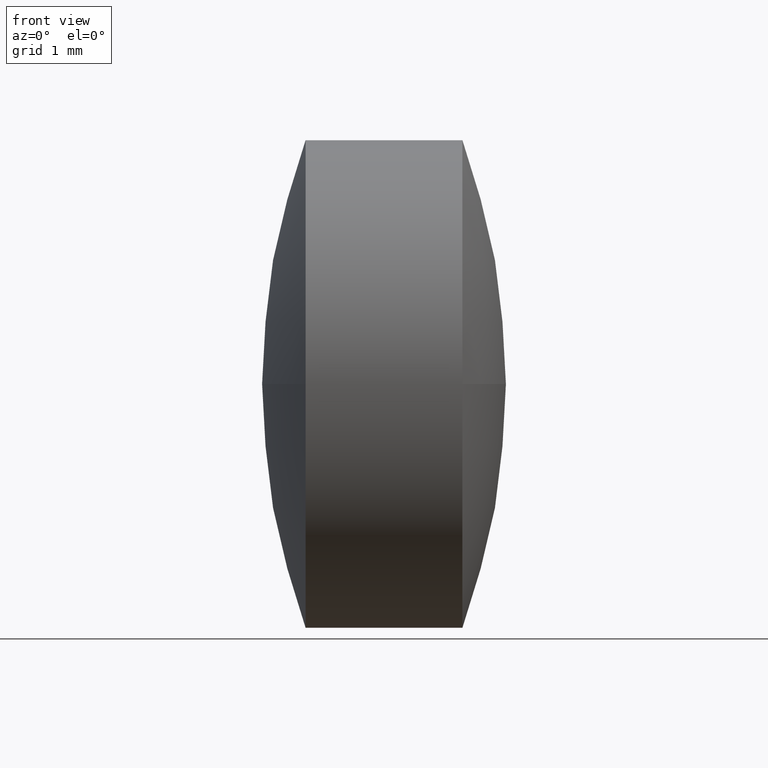
[diagram: clean part render]
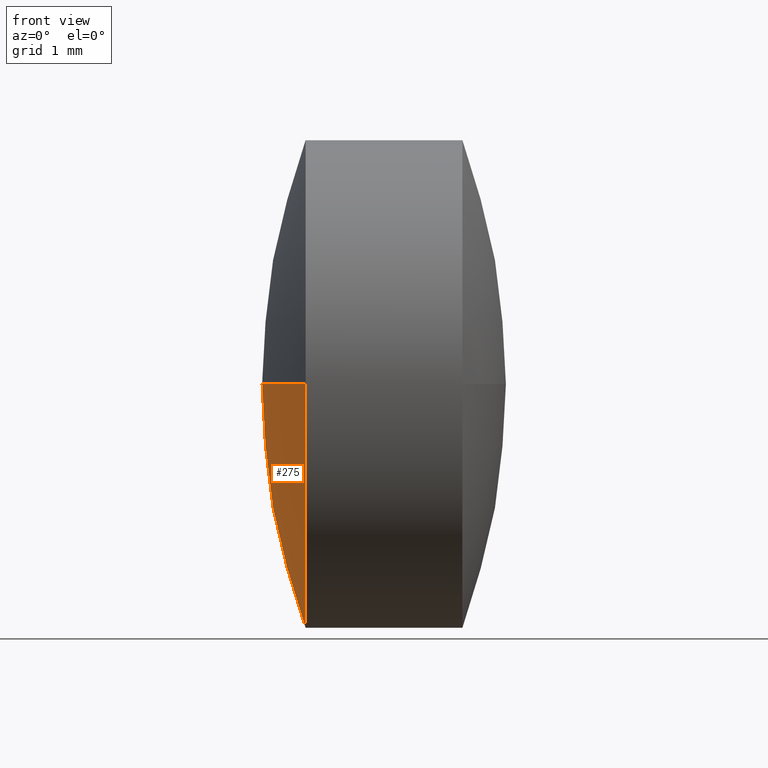
[diagram: same view with one face highlighted and labeled with its STEP entity id]
A machine part, front view. The second image highlights one B-rep face of the part: STEP entity #275.
In plain terms, the highlighted spherical surface has radius 8.6788 mm.
Its self-contained STEP definition (entity closure, byte-faithful):
#2 = VERTEX_POINT ( 'NONE', #328 ) ;
#13 = EDGE_CURVE ( 'NONE', #79, #2, #341, .T. ) ;
#29 = ORIENTED_EDGE ( 'NONE', *, *, #13, .T. ) ;
#33 = EDGE_CURVE ( 'NONE', #98, #79, #335, .T. ) ;
#35 = ORIENTED_EDGE ( 'NONE', *, *, #338, .F. ) ;
#51 = AXIS2_PLACEMENT_3D ( 'NONE', #192, #244, #245 ) ;
#79 = VERTEX_POINT ( 'NONE', #145 ) ;
#84 = CARTESIAN_POINT ( 'NONE',  ( 27.60200588776993100, 11.48412118657908100, 0.0000000000000000000 ) ) ;
#87 = DIRECTION ( 'NONE',  ( -1.000000000000000000, -0.0000000000000000000, -0.0000000000000000000 ) ) ;
#95 = CIRCLE ( 'NONE', #258, 8.678801936499811000 ) ;
#98 = VERTEX_POINT ( 'NONE', #263 ) ;
#103 = CARTESIAN_POINT ( 'NONE',  ( 19.45819823698440500, 11.48412118657908500, 0.0000000000000000000 ) ) ;
#111 = DIRECTION ( 'NONE',  ( -0.0000000000000000000, 0.0000000000000000000, -1.000000000000000000 ) ) ;
#112 = DIRECTION ( 'NONE',  ( 0.0000000000000000000, 1.000000000000000000, 0.0000000000000000000 ) ) ;
#115 = DIRECTION ( 'NONE',  ( -0.0000000000000000000, 0.0000000000000000000, 1.000000000000000000 ) ) ;
#133 = DIRECTION ( 'NONE',  ( 0.0000000000000000000, 0.0000000000000000000, 1.000000000000000000 ) ) ;
#145 = CARTESIAN_POINT ( 'NONE',  ( 19.45819823698440500, 11.48412118657908500, -2.999999999999997300 ) ) ;
#148 = AXIS2_PLACEMENT_3D ( 'NONE', #84, #111, #112 ) ;
#154 = DIRECTION ( 'NONE',  ( 0.0000000000000000000, 0.0000000000000000000, 1.000000000000000000 ) ) ;
#158 = AXIS2_PLACEMENT_3D ( 'NONE', #103, #331, #133 ) ;
#192 = CARTESIAN_POINT ( 'NONE',  ( 27.60200588776993100, 11.48412118657908100, 0.0000000000000000000 ) ) ;
#195 = CARTESIAN_POINT ( 'NONE',  ( 27.60200588776993100, 11.48412118657908100, 0.0000000000000000000 ) ) ;
#202 = ORIENTED_EDGE ( 'NONE', *, *, #33, .T. ) ;
#220 = AXIS2_PLACEMENT_3D ( 'NONE', #299, #87, #154 ) ;
#238 = CIRCLE ( 'NONE', #51, 8.678801936499811000 ) ;
#244 = DIRECTION ( 'NONE',  ( 0.0000000000000000000, 1.224646799147353200E-016, -1.000000000000000000 ) ) ;
#245 = DIRECTION ( 'NONE',  ( 0.0000000000000000000, 1.000000000000000000, 1.224646799147353000E-016 ) ) ;
#252 = EDGE_LOOP ( 'NONE', ( #202, #29, #256, #35 ) ) ;
#256 = ORIENTED_EDGE ( 'NONE', *, *, #298, .T. ) ;
#258 = AXIS2_PLACEMENT_3D ( 'NONE', #195, #115, #290 ) ;
#260 = VERTEX_POINT ( 'NONE', #336 ) ;
#263 = CARTESIAN_POINT ( 'NONE',  ( 19.45819823698440100, 14.48412118657908100, 0.0000000000000000000 ) ) ;
#275 = ADVANCED_FACE ( 'NONE', ( #291 ), #326, .T. ) ;
#290 = DIRECTION ( 'NONE',  ( 1.000000000000000000, 0.0000000000000000000, 0.0000000000000000000 ) ) ;
#291 = FACE_OUTER_BOUND ( 'NONE', #252, .T. ) ;
#298 = EDGE_CURVE ( 'NONE', #2, #260, #238, .T. ) ;
#299 = CARTESIAN_POINT ( 'NONE',  ( 19.45819823698440500, 11.48412118657908500, 0.0000000000000000000 ) ) ;
#326 = SPHERICAL_SURFACE ( 'NONE', #148, 8.678801936499809200 ) ;
#328 = CARTESIAN_POINT ( 'NONE',  ( 19.45819823698440100, 8.484121186579086400, -3.673940397442054400E-016 ) ) ;
#331 = DIRECTION ( 'NONE',  ( -1.000000000000000000, -0.0000000000000000000, -0.0000000000000000000 ) ) ;
#335 = CIRCLE ( 'NONE', #158, 2.999999999999997300 ) ;
#336 = CARTESIAN_POINT ( 'NONE',  ( 18.92320395127011800, 11.48412118657908100, 0.0000000000000000000 ) ) ;
#338 = EDGE_CURVE ( 'NONE', #98, #260, #95, .T. ) ;
#341 = CIRCLE ( 'NONE', #220, 2.999999999999997300 ) ;